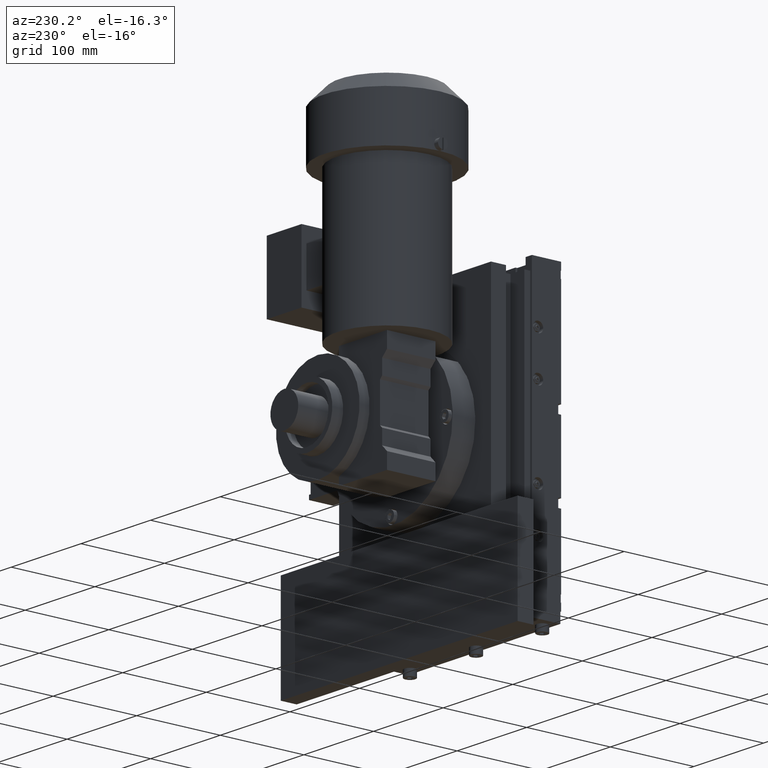
[diagram: clean part render]
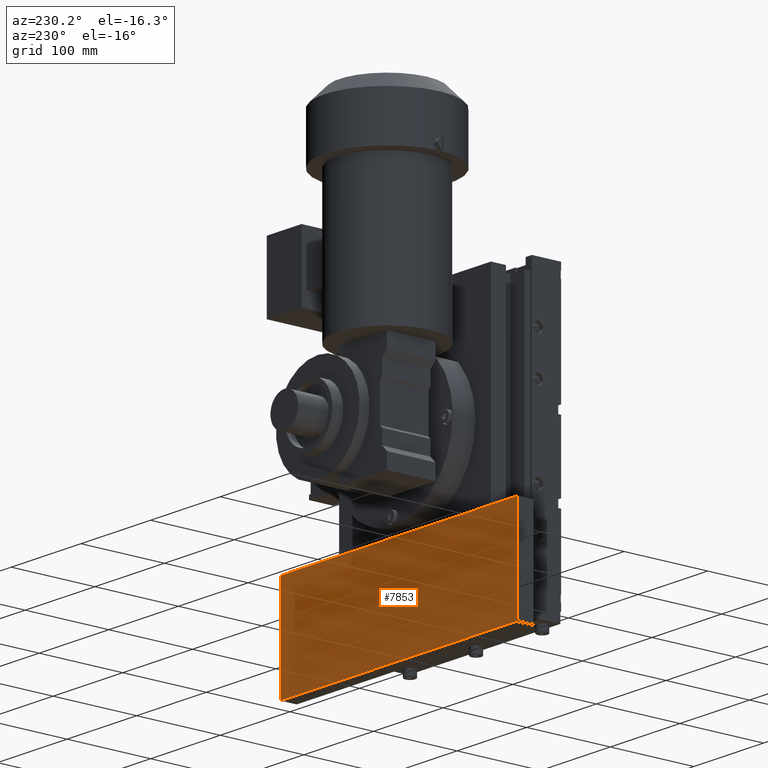
[diagram: same view with one face highlighted and labeled with its STEP entity id]
A machine part, auxiliary view. The second image highlights one B-rep face of the part: STEP entity #7853.
In plain terms, the highlighted planar face has unit normal (0, -1, 0).
Its self-contained STEP definition (entity closure, byte-faithful):
#7853=ADVANCED_FACE('',(#15276),#15277,.F.);
#15276=FACE_OUTER_BOUND('',#25614,.T.);
#15277=PLANE('',#25615);
#25614=EDGE_LOOP('',(#43574,#43575,#43576,#43577));
#25615=AXIS2_PLACEMENT_3D('',#43578,#43579,#43580);
#43574=ORIENTED_EDGE('',*,*,#48782,.T.);
#43575=ORIENTED_EDGE('',*,*,#51452,.F.);
#43576=ORIENTED_EDGE('',*,*,#54366,.F.);
#43577=ORIENTED_EDGE('',*,*,#51699,.T.);
#43578=CARTESIAN_POINT('',(-87.5837336560608,-85.6774908163583,-189.058620167230));
#43579=DIRECTION('',(0.000000000000000,-1.00000000000000,0.000000000000000));
#43580=DIRECTION('',(0.000000000000000,0.000000000000000,-1.00000000000000));
#48782=EDGE_CURVE('',#57481,#57478,#57482,.T.);
#51452=EDGE_CURVE('',#61942,#57478,#61944,.T.);
#51699=EDGE_CURVE('',#62311,#57481,#62312,.T.);
#54366=EDGE_CURVE('',#62311,#61942,#66061,.T.);
#57478=VERTEX_POINT('',#70138);
#57481=VERTEX_POINT('',#70142);
#57482=LINE('',#70143,#70144);
#61942=VERTEX_POINT('',#76731);
#61944=LINE('',#76734,#76735);
#62311=VERTEX_POINT('',#77288);
#62312=LINE('',#77289,#77290);
#66061=LINE('',#82918,#82919);
#70138=CARTESIAN_POINT('',(-427.583733656061,-85.6774908163583,-309.058620167231));
#70142=CARTESIAN_POINT('',(-87.5837336560608,-85.6774908163583,-309.058620167231));
#70143=CARTESIAN_POINT('',(-87.5837336560608,-85.6774908163583,-309.058620167231));
#70144=VECTOR('',#86424,1.00000000000000);
#76731=CARTESIAN_POINT('',(-427.583733656061,-85.6774908163583,-189.058620167230));
#76734=CARTESIAN_POINT('',(-427.583733656061,-85.6774908163583,-189.058620167230));
#76735=VECTOR('',#88884,1.00000000000000);
#77288=CARTESIAN_POINT('',(-87.5837336560608,-85.6774908163583,-189.058620167230));
#77289=CARTESIAN_POINT('',(-87.5837336560608,-85.6774908163583,-189.058620167230));
#77290=VECTOR('',#89102,1.00000000000000);
#82918=CARTESIAN_POINT('',(-87.5837336560608,-85.6774908163583,-189.058620167230));
#82919=VECTOR('',#91344,1.00000000000000);
#86424=DIRECTION('',(-1.00000000000000,0.000000000000000,0.000000000000000));
#88884=DIRECTION('',(0.000000000000000,0.000000000000000,-1.00000000000000));
#89102=DIRECTION('',(0.000000000000000,0.000000000000000,-1.00000000000000));
#91344=DIRECTION('',(-1.00000000000000,0.000000000000000,0.000000000000000));